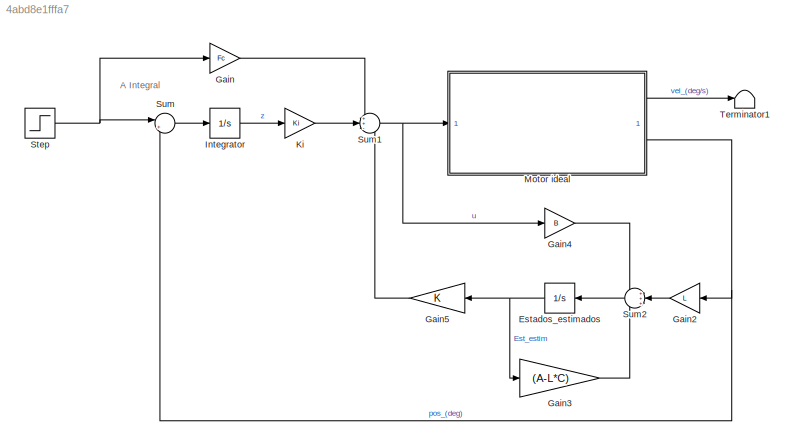
MODEL slx_4abd8e1fffa7
KIND model
CONFIG AbsTol = auto
CONFIG EnableMultiTasking = off
CONFIG FixedStep = auto
CONFIG MaxStep = 0.0001
CONFIG MinStep = auto
CONFIG RelTol = 1e-3
CONFIG SampleTimeConstraint = Unconstrained
CONFIG SolverName = ode45
CONFIG StartTime = 0.0
CONFIG StopTime = 5.4545
BLOCK [Integrator] Estados_estimados
BLOCK [Gain] Gain
  Gain = Fc
BLOCK [Gain] Gain2
  Gain = L
  Multiplication = Matrix(K*u)
BLOCK [Gain] Gain3
  Gain = (A-L*C)
  Multiplication = Matrix(K*u)
BLOCK [Gain] Gain4
  Gain = B
  Multiplication = Matrix(K*u)
BLOCK [Gain] Gain5
  Gain = K
  Multiplication = Matrix(K*u)
BLOCK [Integrator] Integrator
BLOCK [Gain] Ki
  Gain = Ki
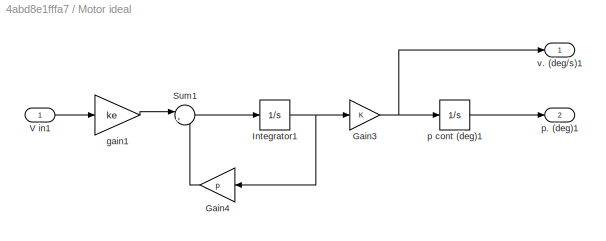
BLOCK [SubSystem] Motor ideal
BLOCK [Gain] Motor ideal/Gain3
BLOCK [Gain] Motor ideal/Gain4
  Gain = p
  NameLocation = top
BLOCK [Integrator] Motor ideal/Integrator1
  InitialCondition = w0
BLOCK [Sum] Motor ideal/Sum1
  Inputs = |+-
BLOCK [Inport] Motor ideal/V in1
BLOCK [Gain] Motor ideal/gain1
  Gain = ke
BLOCK [Integrator] Motor ideal/p cont (deg)1
  InitialCondition = theta0
BLOCK [Outport] Motor ideal/p. (deg)1
  Port = 2
BLOCK [Outport] Motor ideal/v. (deg//s)1
BLOCK [Step] Step
  After = thetaref
  Before = thetaref
  SampleTime = 0
  Time = 0
BLOCK [Sum] Sum
  Inputs = |+-
BLOCK [Sum] Sum1
  Inputs = ++-
BLOCK [Sum] Sum2
  Inputs = +++
BLOCK [Terminator] Terminator1
ANNOTATION (root): A Integral
NET Estados_estimados:1 -> Gain3:1, Gain5:1
LINE Gain2:1 -> Sum2:2
LINE Gain3:1 -> Sum2:3
LINE Gain4:1 -> Sum2:1
LINE Gain5:1 -> Sum1:3
LINE Gain:1 -> Sum1:1
LINE Integrator:1 -> Ki:1
LINE Ki:1 -> Sum1:2
NET Motor ideal/Gain3:1 -> Motor ideal/p cont (deg)1:1, Motor ideal/v. (deg//s)1:1
LINE Motor ideal/Gain4:1 -> Motor ideal/Sum1:2
NET Motor ideal/Integrator1:1 -> Motor ideal/Gain3:1, Motor ideal/Gain4:1
LINE Motor ideal/Sum1:1 -> Motor ideal/Integrator1:1
LINE Motor ideal/V in1:1 -> Motor ideal/gain1:1
LINE Motor ideal/gain1:1 -> Motor ideal/Sum1:1
LINE Motor ideal/p cont (deg)1:1 -> Motor ideal/p. (deg)1:1
LINE Motor ideal:1 -> Terminator1:1
NET Motor ideal:2 -> Gain2:1, Sum:2
NET Step:1 -> Gain:1, Sum:1
NET Sum1:1 -> Gain4:1, Motor ideal:1
LINE Sum2:1 -> Estados_estimados:1
LINE Sum:1 -> Integrator:1
note: NET lines group one-source signal fan-out (src -> all destinations, sorted); 1:1 wires keep LINE
